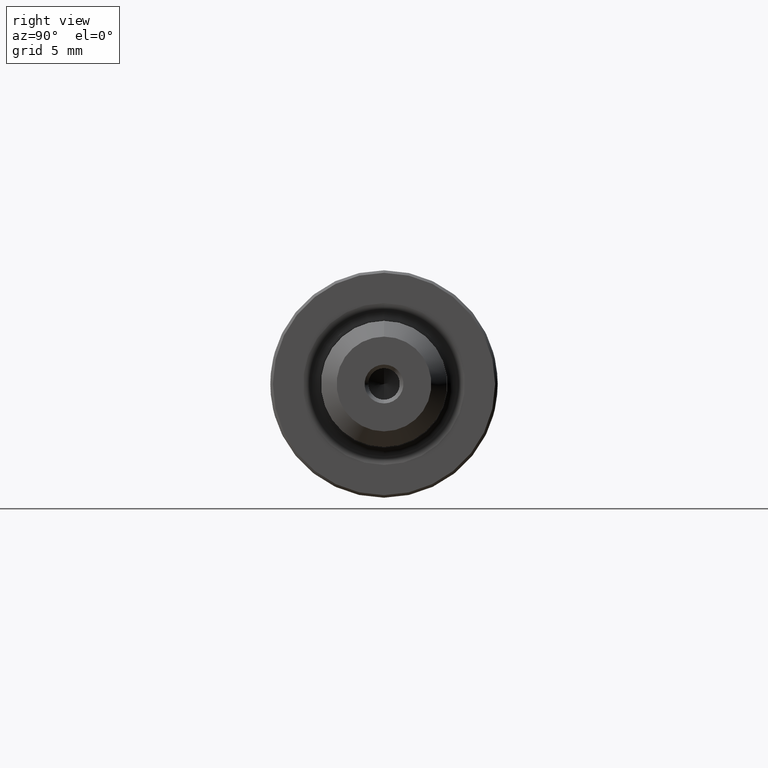
[diagram: clean part render]
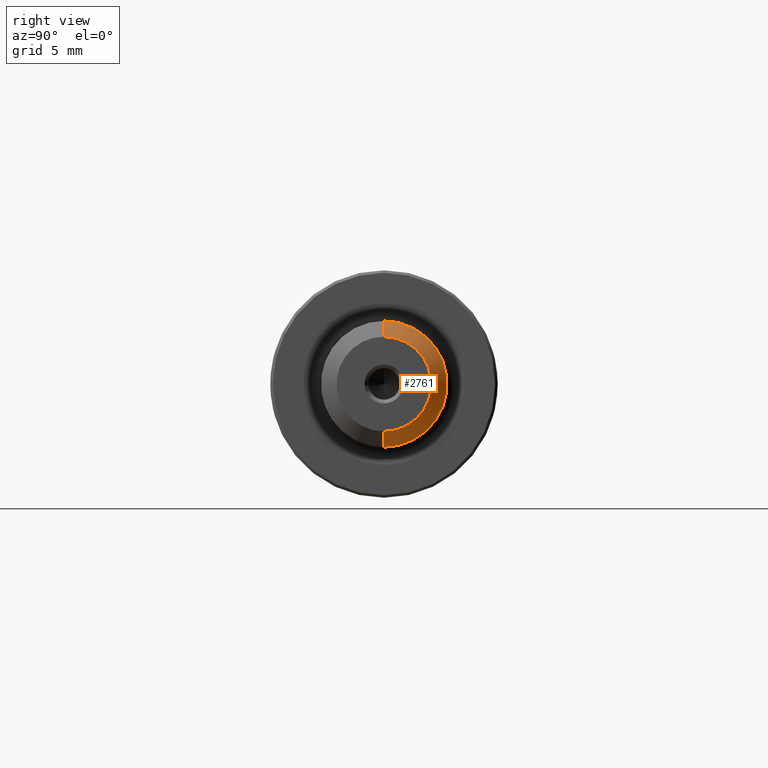
[diagram: same view with one face highlighted and labeled with its STEP entity id]
A machine part, right view. The second image highlights one B-rep face of the part: STEP entity #2761.
In plain terms, the highlighted conical surface has half-angle 45 deg.
Its self-contained STEP definition (entity closure, byte-faithful):
#113 = CARTESIAN_POINT ( 'NONE',  ( 52.31688199999999966, 5.357829746269662732E-16, -3.749999999999985789 ) ) ;
#248 = DIRECTION ( 'NONE',  ( 0.0000000000000000000, 0.0000000000000000000, 1.000000000000000000 ) ) ;
#301 = FACE_OUTER_BOUND ( 'NONE', #2554, .T. ) ;
#323 = CARTESIAN_POINT ( 'NONE',  ( 52.31688199999999966, 0.0000000000000000000, 0.0000000000000000000 ) ) ;
#455 = VERTEX_POINT ( 'NONE', #113 ) ;
#790 = CARTESIAN_POINT ( 'NONE',  ( 52.31688199999999966, 0.0000000000000000000, 0.0000000000000000000 ) ) ;
#880 = CARTESIAN_POINT ( 'NONE',  ( 51.06688199999999966, 0.0000000000000000000, 0.0000000000000000000 ) ) ;
#901 = VERTEX_POINT ( 'NONE', #3779 ) ;
#983 = EDGE_CURVE ( 'NONE', #2758, #901, #1190, .T. ) ;
#1111 = EDGE_CURVE ( 'NONE', #455, #901, #3937, .T. ) ;
#1190 = CIRCLE ( 'NONE', #2407, 5.000000000000000000 ) ;
#1476 = ORIENTED_EDGE ( 'NONE', *, *, #1111, .T. ) ;
#1477 = DIRECTION ( 'NONE',  ( -0.7071067811865440200, 8.659560562354978464E-17, -0.7071067811865511255 ) ) ;
#1625 = AXIS2_PLACEMENT_3D ( 'NONE', #790, #3575, #3901 ) ;
#1708 = EDGE_CURVE ( 'NONE', #2217, #455, #3508, .T. ) ;
#1847 = CARTESIAN_POINT ( 'NONE',  ( 52.31688199999999966, 0.0000000000000000000, 3.749999999999985789 ) ) ;
#1925 = CARTESIAN_POINT ( 'NONE',  ( 52.31688199999999966, 4.592425496802557209E-16, -3.749999999999985789 ) ) ;
#1989 = CARTESIAN_POINT ( 'NONE',  ( 52.31688199999999966, 0.0000000000000000000, 3.749999999999985789 ) ) ;
#2021 = ORIENTED_EDGE ( 'NONE', *, *, #983, .F. ) ;
#2082 = DIRECTION ( 'NONE',  ( -1.000000000000000000, 0.0000000000000000000, 0.0000000000000000000 ) ) ;
#2217 = VERTEX_POINT ( 'NONE', #1847 ) ;
#2407 = AXIS2_PLACEMENT_3D ( 'NONE', #880, #3624, #248 ) ;
#2554 = EDGE_LOOP ( 'NONE', ( #3963, #1476, #2021, #2977 ) ) ;
#2650 = DIRECTION ( 'NONE',  ( -0.7071067811865440200, 0.0000000000000000000, 0.7071067811865511255 ) ) ;
#2743 = AXIS2_PLACEMENT_3D ( 'NONE', #323, #2082, #3695 ) ;
#2758 = VERTEX_POINT ( 'NONE', #2768 ) ;
#2761 = ADVANCED_FACE ( 'NONE', ( #301 ), #3708, .T. ) ;
#2768 = CARTESIAN_POINT ( 'NONE',  ( 51.06688199999999966, 0.0000000000000000000, 5.000000000000000000 ) ) ;
#2847 = VECTOR ( 'NONE', #1477, 999.9999999999998863 ) ;
#2949 = LINE ( 'NONE', #1989, #3579 ) ;
#2952 = EDGE_CURVE ( 'NONE', #2217, #2758, #2949, .T. ) ;
#2977 = ORIENTED_EDGE ( 'NONE', *, *, #2952, .F. ) ;
#3508 = CIRCLE ( 'NONE', #1625, 3.749999999999985789 ) ;
#3575 = DIRECTION ( 'NONE',  ( -1.000000000000000000, 0.0000000000000000000, 0.0000000000000000000 ) ) ;
#3579 = VECTOR ( 'NONE', #2650, 999.9999999999998863 ) ;
#3624 = DIRECTION ( 'NONE',  ( -1.000000000000000000, 0.0000000000000000000, 0.0000000000000000000 ) ) ;
#3695 = DIRECTION ( 'NONE',  ( 0.0000000000000000000, 0.0000000000000000000, 1.000000000000000000 ) ) ;
#3708 = CONICAL_SURFACE ( 'NONE', #2743, 3.749999999999985789, 0.7853981633974533860 ) ;
#3779 = CARTESIAN_POINT ( 'NONE',  ( 51.06688199999999966, 6.123233995736766282E-16, -5.000000000000000000 ) ) ;
#3901 = DIRECTION ( 'NONE',  ( 0.0000000000000000000, 0.0000000000000000000, 1.000000000000000000 ) ) ;
#3937 = LINE ( 'NONE', #1925, #2847 ) ;
#3963 = ORIENTED_EDGE ( 'NONE', *, *, #1708, .T. ) ;